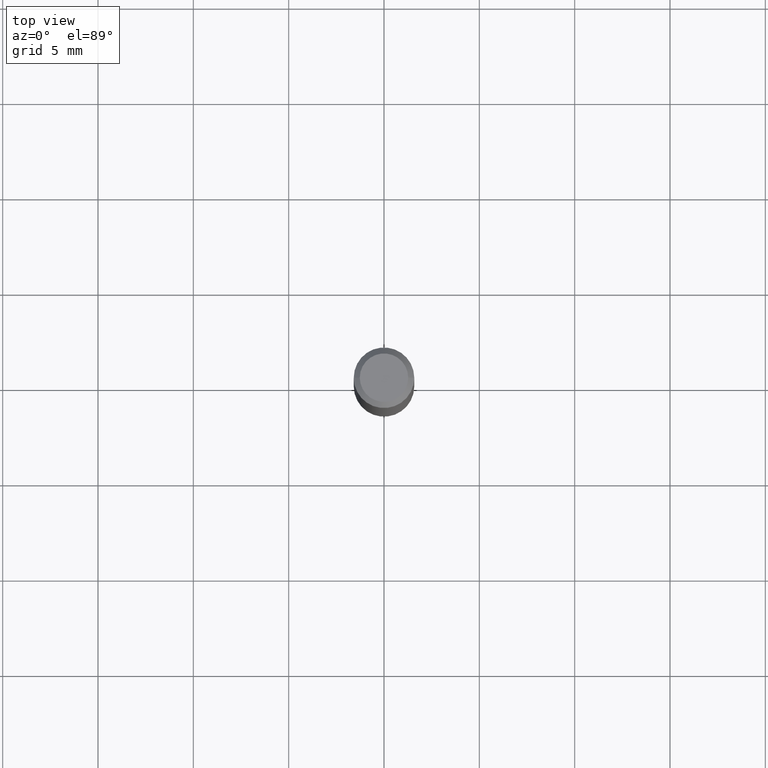
[diagram: clean part render]
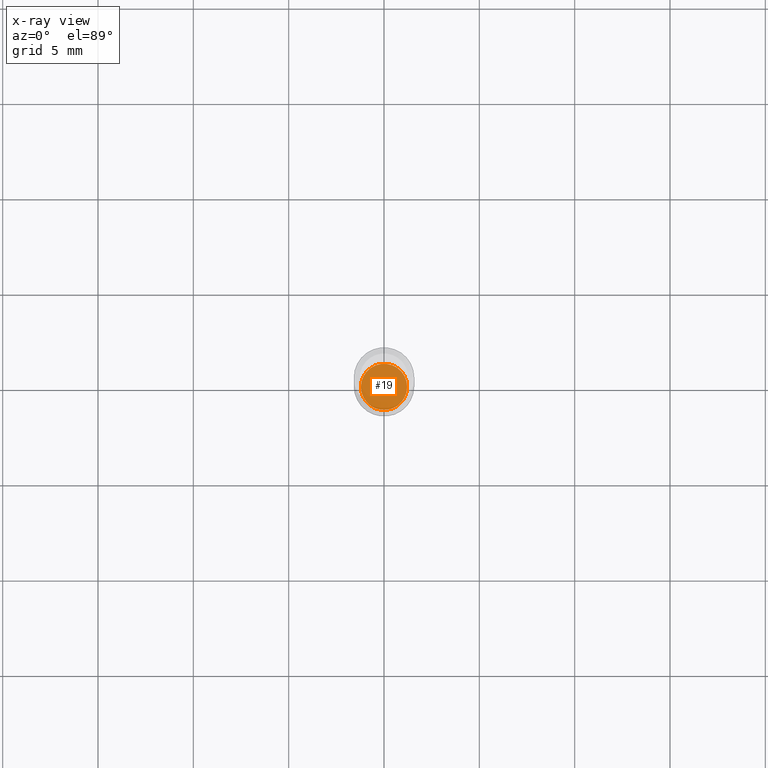
[diagram: x-ray — body ghosted, one internal face saturated and labeled with its STEP entity id]
A machine part, top view, then the same camera in x-ray: the body is ghosted and one INTERNAL B-rep face — a face not visible from any outside direction — is saturated and labeled: STEP entity #19.
In plain terms, the highlighted planar face has unit normal (-0, 0, 1).
Its self-contained STEP definition (entity closure, byte-faithful):
#18 = VERTEX_POINT ( 'NONE', #175 ) ;
#19 = ADVANCED_FACE ( 'NONE', ( #328 ), #362, .F. ) ;
#23 = EDGE_CURVE ( 'NONE', #18, #359, #296, .T. ) ;
#90 = EDGE_LOOP ( 'NONE', ( #318, #428 ) ) ;
#92 = AXIS2_PLACEMENT_3D ( 'NONE', #112, #338, #408 ) ;
#99 = CARTESIAN_POINT ( 'NONE',  ( 2.690015686803650369E-29, -3.840629472727460101E-15, -1.100000000000000089 ) ) ;
#106 = DIRECTION ( 'NONE',  ( -2.438088387897960049E-29, 3.491481338843145188E-15, 1.000000000000000000 ) ) ;
#112 = CARTESIAN_POINT ( 'NONE',  ( 2.690015686803650369E-29, -3.840629472727460101E-15, -1.100000000000000089 ) ) ;
#134 = DIRECTION ( 'NONE',  ( 1.000000000000000000, -6.982962677686265922E-15, 4.876176775795935793E-29 ) ) ;
#141 = DIRECTION ( 'NONE',  ( 1.000000000000000000, -6.982962677686267499E-15, 0.000000000000000000 ) ) ;
#144 = AXIS2_PLACEMENT_3D ( 'NONE', #287, #365, #141 ) ;
#155 = CARTESIAN_POINT ( 'NONE',  ( -0.04775000000000000078, -3.498696089227901352E-15, -1.100000000000000089 ) ) ;
#175 = CARTESIAN_POINT ( 'NONE',  ( 0.04775000000000000078, -4.174065940586979116E-15, -1.100000000000000089 ) ) ;
#246 = CIRCLE ( 'NONE', #92, 0.04775000000000000078 ) ;
#287 = CARTESIAN_POINT ( 'NONE',  ( 2.690015686803650369E-29, -3.840629472727460101E-15, -1.100000000000000089 ) ) ;
#296 = CIRCLE ( 'NONE', #144, 0.04775000000000000078 ) ;
#318 = ORIENTED_EDGE ( 'NONE', *, *, #23, .F. ) ;
#328 = FACE_OUTER_BOUND ( 'NONE', #90, .T. ) ;
#338 = DIRECTION ( 'NONE',  ( -2.445468806185136597E-29, 3.491481338843145583E-15, 1.000000000000000000 ) ) ;
#339 = EDGE_CURVE ( 'NONE', #359, #18, #246, .T. ) ;
#359 = VERTEX_POINT ( 'NONE', #155 ) ;
#362 = PLANE ( 'NONE',  #487 ) ;
#365 = DIRECTION ( 'NONE',  ( -2.445468806185136597E-29, 3.491481338843145583E-15, 1.000000000000000000 ) ) ;
#408 = DIRECTION ( 'NONE',  ( 1.000000000000000000, -6.982962677686267499E-15, 0.000000000000000000 ) ) ;
#428 = ORIENTED_EDGE ( 'NONE', *, *, #339, .F. ) ;
#487 = AXIS2_PLACEMENT_3D ( 'NONE', #99, #106, #134 ) ;